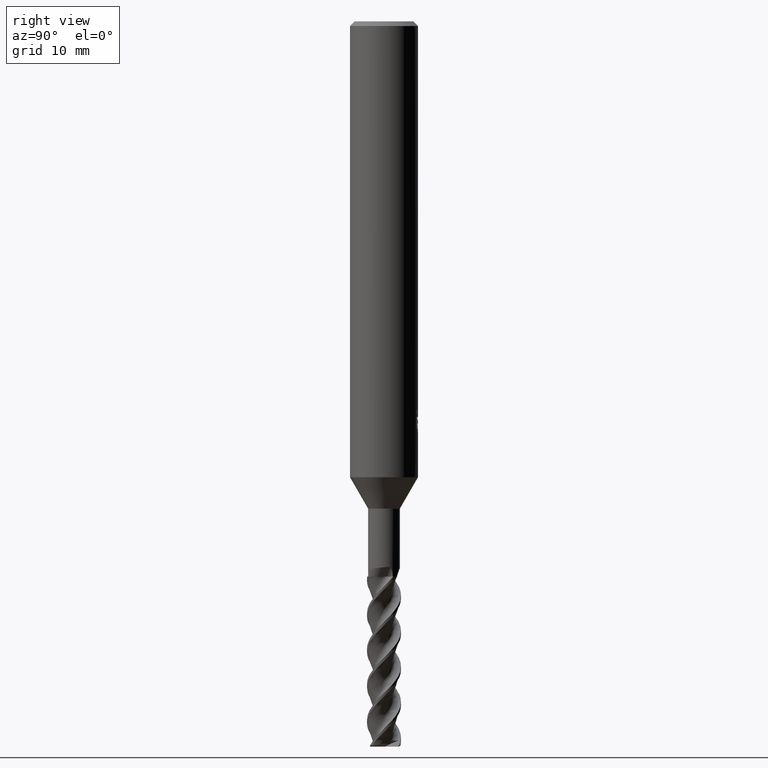
[diagram: clean part render]
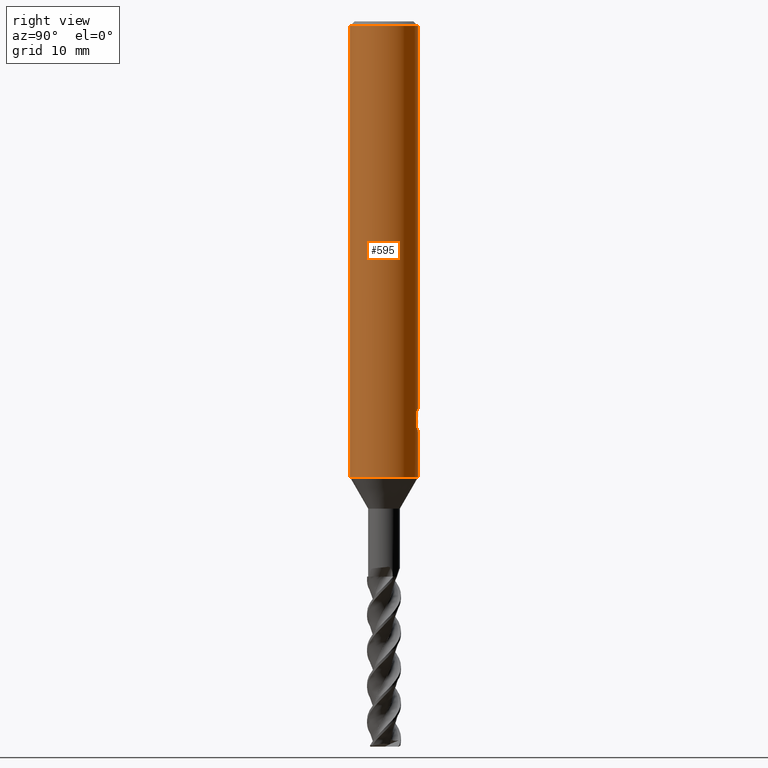
[diagram: same view with one face highlighted and labeled with its STEP entity id]
A machine part, right view. The second image highlights one B-rep face of the part: STEP entity #595.
In plain terms, the highlighted cylindrical surface (edge-blend (fillet) strip) has radius 3 mm, axis along (-0, -0, 1).
Its self-contained STEP definition (entity closure, byte-faithful):
#519=VERTEX_POINT('',#1452);
#557=VERTEX_POINT('',#1494);
#561=EDGE_CURVE('',#1251,#1223,#1498,.T.);
#571=VERTEX_POINT('',#1508);
#595=ADVANCED_FACE('',(#1534,#1535),#1536,.T.);
#599=EDGE_CURVE('',#1313,#727,#1540,.T.);
#601=VERTEX_POINT('',#1542);
#671=EDGE_CURVE('',#1023,#1039,#1621,.T.);
#693=EDGE_CURVE('',#1241,#519,#1647,.T.);
#727=VERTEX_POINT('',#1686);
#819=EDGE_CURVE('',#1223,#1241,#1787,.T.);
#853=EDGE_CURVE('',#727,#571,#1822,.T.);
#901=EDGE_CURVE('',#601,#1335,#1871,.T.);
#1007=EDGE_CURVE('',#1335,#557,#1987,.T.);
#1023=VERTEX_POINT('',#2006);
#1039=VERTEX_POINT('',#2024);
#1057=VERTEX_POINT('',#2042);
#1095=VERTEX_POINT('',#2086);
#1103=EDGE_CURVE('',#1095,#1023,#2094,.T.);
#1117=EDGE_CURVE('',#557,#1313,#2109,.T.);
#1133=EDGE_CURVE('',#519,#601,#2126,.T.);
#1161=EDGE_CURVE('',#1267,#1095,#2157,.T.);
#1223=VERTEX_POINT('',#2223);
#1225=EDGE_CURVE('',#1057,#1251,#2225,.T.);
#1241=VERTEX_POINT('',#2243);
#1251=VERTEX_POINT('',#2255);
#1267=VERTEX_POINT('',#2271);
#1313=VERTEX_POINT('',#2320);
#1335=VERTEX_POINT('',#2343);
#1341=EDGE_CURVE('',#1267,#1039,#2350,.T.);
#1377=EDGE_CURVE('',#571,#1057,#2388,.T.);
#1452=CARTESIAN_POINT('',(0.891458520360562,2.86448978117859,-34.5724599021333));
#1494=CARTESIAN_POINT('',(0.017320435906989,2.99995,-35.2311258377872));
#1498=LINE('',#3945,#3946);
#1508=CARTESIAN_POINT('',(0.0173204359069983,2.99995,-36.2493099672144));
#1534=FACE_OUTER_BOUND('',#4077,.T.);
#1535=FACE_BOUND('',#4078,.T.);
#1536=CYLINDRICAL_SURFACE('',#4079,3.0);
#1540=ELLIPSE('',#4090,3.34478529612858,3.0);
#1542=CARTESIAN_POINT('',(0.532945602569763,2.95228199613478,-34.2291001845789));
#1621=LINE('',#4556,#4557);
#1647=LINE('',#4968,#4969);
#1686=CARTESIAN_POINT('',(0.017320435906985,2.99995,-35.3624691290817));
#1787=B_SPLINE_CURVE_WITH_KNOTS('',3,(#5850,#5851,#5852,#5853,#5854,#5855),.UNSPECIFIED.,.F.,.F.,(4,2,4),(5.37052262242642,5.78309682294637,6.19625240627158),.UNSPECIFIED.);
#1822=LINE('',#6045,#6046);
#1871=B_SPLINE_CURVE_WITH_KNOTS('',3,(#6230,#6231,#6232,#6233,#6234,#6235,#6236,#6237,#6238,#6239,#6240,#6241,#6242,#6243,#6244,#6245,#6246,#6247,#6248,#6249,#6250,#6251,#6252,#6253,#6254,#6255,#6256),.UNSPECIFIED.,.F.,.F.,(4,2,3,2,2,2,2,2,2,2,2,2,4),(-0.361797878080097,-0.180898939040048,0.0,0.180898939040045,0.36179787808009,0.54316499674529,0.724532115410489,0.905110773244761,1.08568943107903,1.26650066090355,1.44731189072806,1.62812312055258,1.80893435037709),.UNSPECIFIED.);
#1987=LINE('',#7665,#7666);
#2006=CARTESIAN_POINT('',(3.67381906146713E-016,-3.0,-40.229));
#2024=CARTESIAN_POINT('',(3.67381906146713E-016,-3.0,-0.399999999999999));
#2042=CARTESIAN_POINT('',(0.193398861644812,2.99375965640438,-36.228955271205));
#2086=CARTESIAN_POINT('',(0.0,3.0,-40.229));
#2094=CIRCLE('',#8649,3.0);
#2109=B_SPLINE_CURVE_WITH_KNOTS('',3,(#9174,#9175,#9176,#9177,#9178,#9179,#9180,#9181,#9182,#9183,#9184,#9185,#9186,#9187),.UNSPECIFIED.,.F.,.F.,(4,2,2,2,2,2,4),(2.091097645352,2.38959558480883,2.68809352426566,2.9865914637225,3.28432857408576,3.58206568444903,3.88185771191667),.UNSPECIFIED.);
#2126=B_SPLINE_CURVE_WITH_KNOTS('',3,(#9238,#9239,#9240,#9241,#9242,#9243),.UNSPECIFIED.,.F.,.F.,(4,2,4),(0.413155597726238,0.826311195452475,1.23888540984235),.UNSPECIFIED.);
#2157=LINE('',#9348,#9349);
#2223=CARTESIAN_POINT('',(0.582364149245685,2.94293255064967,-36.0682261365542));
#2225=ELLIPSE('',#10262,9.14398372010932,3.0);
#2243=CARTESIAN_POINT('',(0.891458520360562,2.86448978117859,-35.7558516898096));
#2255=CARTESIAN_POINT('',(0.582364149245686,2.94293255064967,-35.1090141090597));
#2271=CARTESIAN_POINT('',(0.0,3.0,-0.399999999999999));
#2320=CARTESIAN_POINT('',(0.382078323112377,2.97556988743461,-35.1826374206519));
#2343=CARTESIAN_POINT('',(0.0173204359069655,2.99995,-34.9147978605752));
#2350=CIRCLE('',#12518,3.0);
#2388=B_SPLINE_CURVE_WITH_KNOTS('',3,(#12821,#12822,#12823,#12824,#12825,#12826,#12827,#12828,#12829,#12830),.UNSPECIFIED.,.F.,.F.,(4,2,2,2,4),(3.71798730591323,4.13127027719931,4.54460961578536,4.9579489543714,5.37052319276389),.UNSPECIFIED.);
#3945=CARTESIAN_POINT('',(0.582364149245686,2.94293255064967,-35.588620122807));
#3946=VECTOR('',#13028,1.0);
#4077=EDGE_LOOP('',(#13049,#13050,#13051,#13052));
#4078=EDGE_LOOP('',(#13053,#13054,#13055,#13056,#13057,#13058,#13059,#13060,#13061,#13062,#13063));
#4079=AXIS2_PLACEMENT_3D('',#13064,#13065,#13066);
#4090=AXIS2_PLACEMENT_3D('',#13067,#13068,#13069);
#4556=CARTESIAN_POINT('',(3.67381906146713E-016,-3.0,-20.3145));
#4557=VECTOR('',#13170,1.0);
#4968=CARTESIAN_POINT('',(0.891458520360562,2.86448978117859,-35.1641557959714));
#4969=VECTOR('',#13197,1.0);
#5850=CARTESIAN_POINT('',(0.398117010340557,2.97346646964069,-36.1666335040356));
#5851=CARTESIAN_POINT('',(0.531685226880308,2.95558303976684,-36.1110698713996));
#5852=CARTESIAN_POINT('',(0.652975783373712,2.92974185605895,-36.0277230899086));
#5853=CARTESIAN_POINT('',(0.844490785097963,2.88038670497133,-35.8362944450911));
#5854=CARTESIAN_POINT('',(0.927866849687464,2.85351135080826,-35.7149939218539));
#5855=CARTESIAN_POINT('',(0.983470326877133,2.83421701994611,-35.5814192995311));
#6045=CARTESIAN_POINT('',(0.017320435906985,2.99995,-35.2395073647412));
#6046=VECTOR('',#13374,1.0);
#6230=CARTESIAN_POINT('',(0.443451175650265,2.96704416125113,-34.1048764058061));
#6231=CARTESIAN_POINT('',(0.485825230520439,2.96071098134951,-34.1473072631593));
#6232=CARTESIAN_POINT('',(0.522628634598443,2.95423041401875,-34.2010565977036));
#6233=CARTESIAN_POINT('',(0.57151547907337,2.94516350896329,-34.3190093998545));
#6234=CARTESIAN_POINT('',(0.58359092842081,2.94268952291351,-34.3832247886018));
#6235=CARTESIAN_POINT('',(0.58359092842081,2.94268952291351,-34.4435244349484));
#6236=CARTESIAN_POINT('',(0.58359092842081,2.94268952291351,-34.5038240812951));
#6237=CARTESIAN_POINT('',(0.571515479073374,2.94516350896329,-34.5680394700423));
#6238=CARTESIAN_POINT('',(0.522628634598449,2.95423041401874,-34.6859922721932));
#6239=CARTESIAN_POINT('',(0.485825230520438,2.96071098134951,-34.7397416067375));
#6240=CARTESIAN_POINT('',(0.400967453640912,2.97339373188344,-34.8247131355921));
#6241=CARTESIAN_POINT('',(0.347160591378603,2.98043595390805,-34.8616186343397));
#6242=CARTESIAN_POINT('',(0.229067490754345,2.99183004798448,-34.9106491335629));
#6243=CARTESIAN_POINT('',(0.164768311964613,2.99608182394725,-34.9227661750437));
#6244=CARTESIAN_POINT('',(0.0441927259273236,3.00027835150232,-34.9227661750437));
#6245=CARTESIAN_POINT('',(-0.019984914707439,3.00051422459916,-34.9107432311485));
#6246=CARTESIAN_POINT('',(-0.138011899975601,2.99740516520178,-34.8618705536194));
#6247=CARTESIAN_POINT('',(-0.191865153226538,2.99416206152009,-34.8250238345305));
#6248=CARTESIAN_POINT('',(-0.276951356845972,2.9874941541864,-34.7400104084073));
#6249=CARTESIAN_POINT('',(-0.31385751762486,2.98363884435361,-34.6861404765947));
#6250=CARTESIAN_POINT('',(-0.362829872721118,2.97808021777493,-34.56803592618));
#6251=CARTESIAN_POINT('',(-0.374892551769671,2.97648376018208,-34.5037948448899));
#6252=CARTESIAN_POINT('',(-0.374892551769671,2.97648376018208,-34.3832540250069));
#6253=CARTESIAN_POINT('',(-0.362829872721118,2.97808021777493,-34.3190129437168));
#6254=CARTESIAN_POINT('',(-0.31385751762486,2.98363884435361,-34.2009083933022));
#6255=CARTESIAN_POINT('',(-0.276951356845972,2.9874941541864,-34.1470384614896));
#6256=CARTESIAN_POINT('',(-0.234380876478644,2.99083025341478,-34.1045043932883));
#7665=CARTESIAN_POINT('',(0.017320435906985,2.99995,-35.2395073647412));
#7666=VECTOR('',#13524,1.0);
#8649=AXIS2_PLACEMENT_3D('',#13666,#13667,#13668);
#9174=CARTESIAN_POINT('',(-0.629727328037683,2.93316271153213,-34.1440913557644));
#9175=CARTESIAN_POINT('',(-0.670089755997728,2.92449721450026,-34.2412639601135));
#9176=CARTESIAN_POINT('',(-0.690061178540054,2.91955742705498,-34.3471316354559));
#9177=CARTESIAN_POINT('',(-0.690061178540054,2.91955742705498,-34.5461302617605));
#9178=CARTESIAN_POINT('',(-0.670089755997728,2.92449721450026,-34.6519979371029));
#9179=CARTESIAN_POINT('',(-0.589364900077664,2.94182820856402,-34.8463431458012));
#9180=CARTESIAN_POINT('',(-0.528629969212499,2.95390696563364,-34.9348560999866));
#9181=CARTESIAN_POINT('',(-0.388825924618277,2.97553438372319,-35.0744507471901));
#9182=CARTESIAN_POINT('',(-0.300374998568301,2.98650953771095,-35.1350152917628));
#9183=CARTESIAN_POINT('',(-0.106252469502454,2.99969577970094,-35.2154637231012));
#9184=CARTESIAN_POINT('',(-0.000555188223129111,3.0016411180253,-35.2353289843056));
#9185=CARTESIAN_POINT('',(0.198513504569518,2.99509240733468,-35.2353289843056));
#9186=CARTESIAN_POINT('',(0.304528894401634,2.98611319488251,-35.215217470731));
#9187=CARTESIAN_POINT('',(0.401676121348868,2.97298777218106,-35.1747873850085));
#9238=CARTESIAN_POINT('',(0.983470332191283,2.8342170181021,-34.7468923016557));
#9239=CARTESIAN_POINT('',(0.927866853050187,2.8535113497582,-34.613317674708));
#9240=CARTESIAN_POINT('',(0.844490785540526,2.88038670496079,-34.4920171472775));
#9241=CARTESIAN_POINT('',(0.65297577716901,2.92974185755459,-34.3005884959489));
#9242=CARTESIAN_POINT('',(0.531685216531229,2.95558304183374,-34.2172417116512));
#9243=CARTESIAN_POINT('',(0.398116995441561,2.97346647163552,-34.1616780771524));
#9348=CARTESIAN_POINT('',(-3.67381906146713E-016,3.0,-20.3145));
#9349=VECTOR('',#13722,1.0);
#10262=AXIS2_PLACEMENT_3D('',#13769,#13770,#13771);
#12518=AXIS2_PLACEMENT_3D('',#13878,#13879,#13880);
#12821=CARTESIAN_POINT('',(-1.02131077257619,2.8208020678204,-35.5813603909889));
#12822=CARTESIAN_POINT('',(-0.965748326062893,2.84091920915678,-35.714858656383));
#12823=CARTESIAN_POINT('',(-0.882474008253194,2.86898278727422,-35.8360393018291));
#12824=CARTESIAN_POINT('',(-0.691181971660376,2.92097462682348,-36.0274209134462));
#12825=CARTESIAN_POINT('',(-0.569939118101215,2.94845792845378,-36.1108242986056));
#12826=CARTESIAN_POINT('',(-0.302738780934602,2.98773894197887,-36.2221051738375));
#12827=CARTESIAN_POINT('',(-0.156684840798735,2.99907204453492,-36.2499145449035));
#12828=CARTESIAN_POINT('',(0.118614216879022,3.00080717863586,-36.2499145449035));
#12829=CARTESIAN_POINT('',(0.264548965222023,2.99134988491468,-36.2221974310104));
#12830=CARTESIAN_POINT('',(0.398117192990064,2.97346644518577,-36.1666337934181));
#13028=DIRECTION('',(0.0,0.0,-1.0));
#13049=ORIENTED_EDGE('',*,*,#1161,.F.);
#13050=ORIENTED_EDGE('',*,*,#1341,.T.);
#13051=ORIENTED_EDGE('',*,*,#671,.F.);
#13052=ORIENTED_EDGE('',*,*,#1103,.F.);
#13053=ORIENTED_EDGE('',*,*,#599,.T.);
#13054=ORIENTED_EDGE('',*,*,#853,.T.);
#13055=ORIENTED_EDGE('',*,*,#1377,.T.);
#13056=ORIENTED_EDGE('',*,*,#1225,.T.);
#13057=ORIENTED_EDGE('',*,*,#561,.T.);
#13058=ORIENTED_EDGE('',*,*,#819,.T.);
#13059=ORIENTED_EDGE('',*,*,#693,.T.);
#13060=ORIENTED_EDGE('',*,*,#1133,.T.);
#13061=ORIENTED_EDGE('',*,*,#901,.T.);
#13062=ORIENTED_EDGE('',*,*,#1007,.T.);
#13063=ORIENTED_EDGE('',*,*,#1117,.T.);
#13064=CARTESIAN_POINT('',(0.0,0.0,-20.3145));
#13065=DIRECTION('',(-0.0,-0.0,1.0));
#13066=DIRECTION('',(0.0,1.0,0.0));
#13067=CARTESIAN_POINT('',(0.0,0.0,-35.3710083922181));
#13068=DIRECTION('',(-0.442195774284071,0.0,0.896918556617774));
#13069=DIRECTION('',(0.896918556617774,-0.0,0.442195774284071));
#13170=DIRECTION('',(-0.0,-0.0,1.0));
#13197=DIRECTION('',(-0.0,-0.0,1.0));
#13374=DIRECTION('',(0.0,0.0,-1.0));
#13524=DIRECTION('',(0.0,0.0,-1.0));
#13666=CARTESIAN_POINT('',(0.0,0.0,-40.229));
#13667=DIRECTION('',(0.0,0.0,-1.0));
#13668=DIRECTION('',(0.0,1.0,0.0));
#13722=DIRECTION('',(0.0,0.0,-1.0));
#13769=CARTESIAN_POINT('',(0.0,0.0,-36.7858053366801));
#13770=DIRECTION('',(0.944648353914092,0.0,-0.328084573619969));
#13771=DIRECTION('',(0.328084573619969,-0.0,0.944648353914092));
#13878=CARTESIAN_POINT('',(0.0,0.0,-0.399999999999999));
#13879=DIRECTION('',(0.0,0.0,-1.0));
#13880=DIRECTION('',(0.0,1.0,0.0));